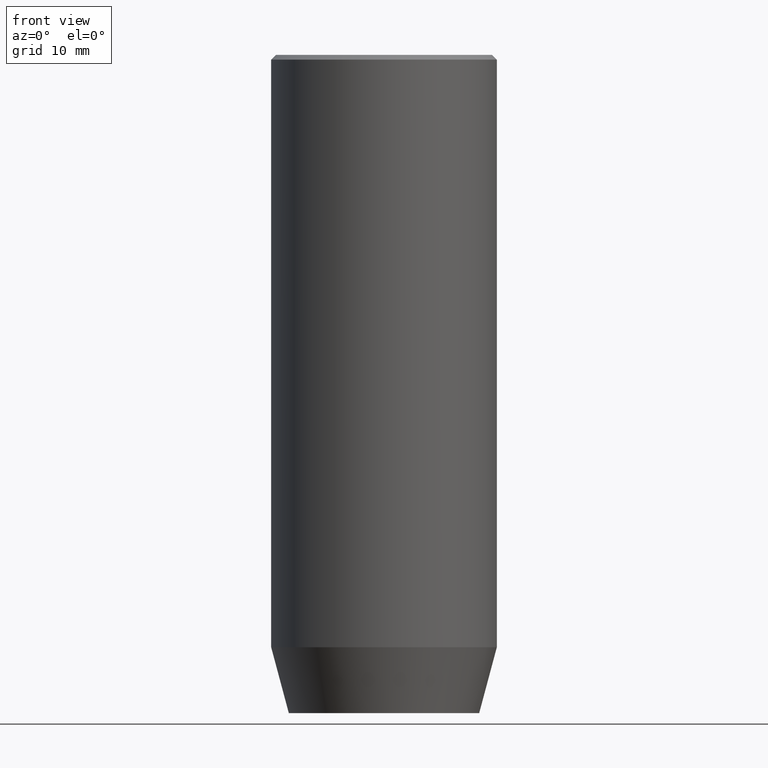
[diagram: clean part render]
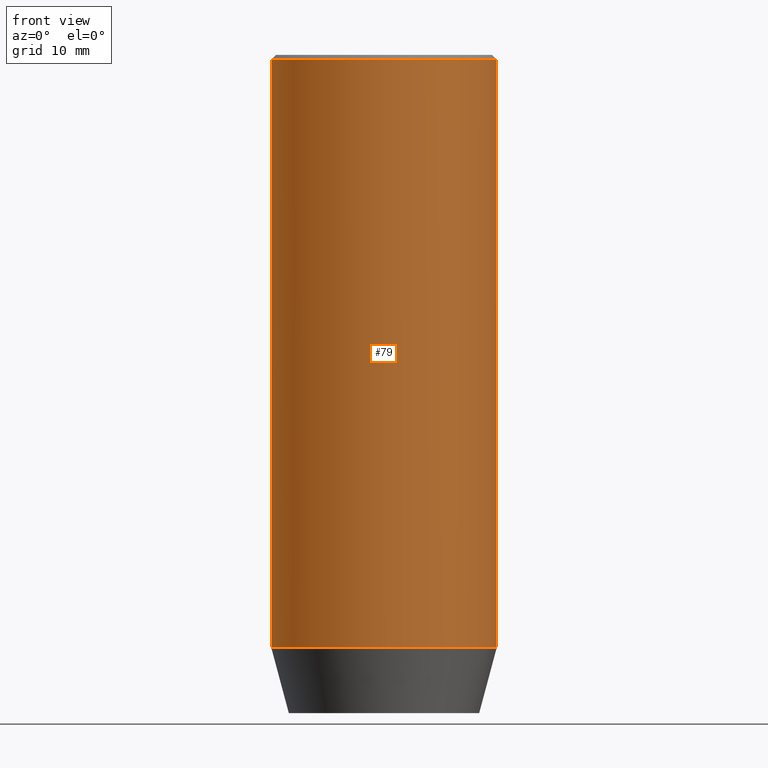
[diagram: same view with one face highlighted and labeled with its STEP entity id]
A machine part, front view. The second image highlights one B-rep face of the part: STEP entity #79.
In plain terms, the highlighted cylindrical surface (partial cylindrical patch) has radius 12 mm, axis along (-0, -0, 1).
Its self-contained STEP definition (entity closure, byte-faithful):
#5 = EDGE_CURVE ( 'NONE', #216, #19, #452, .T. ) ;
#12 = AXIS2_PLACEMENT_3D ( 'NONE', #538, #484, #308 ) ;
#19 = VERTEX_POINT ( 'NONE', #209 ) ;
#20 = AXIS2_PLACEMENT_3D ( 'NONE', #435, #495, #437 ) ;
#31 = LINE ( 'NONE', #160, #547 ) ;
#47 = EDGE_CURVE ( 'NONE', #382, #216, #31, .T. ) ;
#53 = ORIENTED_EDGE ( 'NONE', *, *, #5, .T. ) ;
#56 = ORIENTED_EDGE ( 'NONE', *, *, #47, .T. ) ;
#60 = CARTESIAN_POINT ( 'NONE',  ( -12.00000000000000000, 1.469576158976823947E-15, -63.00000000000000000 ) ) ;
#79 = ADVANCED_FACE ( 'NONE', ( #116 ), #398, .T. ) ;
#116 = FACE_OUTER_BOUND ( 'NONE', #233, .T. ) ;
#148 = CARTESIAN_POINT ( 'NONE',  ( 12.00000000000000000, 0.000000000000000000, -63.00000000000000000 ) ) ;
#160 = CARTESIAN_POINT ( 'NONE',  ( 12.00000000000000000, 0.000000000000000000, 0.000000000000000000 ) ) ;
#171 = EDGE_CURVE ( 'NONE', #348, #382, #472, .T. ) ;
#191 = ORIENTED_EDGE ( 'NONE', *, *, #171, .T. ) ;
#209 = CARTESIAN_POINT ( 'NONE',  ( -12.00000000000000000, 1.469576158976823947E-15, -0.4999999999999917843 ) ) ;
#216 = VERTEX_POINT ( 'NONE', #401 ) ;
#220 = DIRECTION ( 'NONE',  ( -0.000000000000000000, -0.000000000000000000, 1.000000000000000000 ) ) ;
#233 = EDGE_LOOP ( 'NONE', ( #443, #191, #56, #53 ) ) ;
#276 = CARTESIAN_POINT ( 'NONE',  ( -12.00000000000000000, 1.469576158976823947E-15, 0.000000000000000000 ) ) ;
#308 = DIRECTION ( 'NONE',  ( 1.000000000000000000, 0.000000000000000000, 0.000000000000000000 ) ) ;
#319 = EDGE_CURVE ( 'NONE', #348, #19, #564, .T. ) ;
#348 = VERTEX_POINT ( 'NONE', #60 ) ;
#366 = DIRECTION ( 'NONE',  ( -0.000000000000000000, -0.000000000000000000, 1.000000000000000000 ) ) ;
#382 = VERTEX_POINT ( 'NONE', #148 ) ;
#391 = DIRECTION ( 'NONE',  ( -0.000000000000000000, -0.000000000000000000, 1.000000000000000000 ) ) ;
#398 = CYLINDRICAL_SURFACE ( 'NONE', #12, 12.00000000000000000 ) ;
#401 = CARTESIAN_POINT ( 'NONE',  ( 12.00000000000000000, 0.000000000000000000, -0.4999999999999917843 ) ) ;
#435 = CARTESIAN_POINT ( 'NONE',  ( 0.000000000000000000, 0.000000000000000000, -0.4999999999999917843 ) ) ;
#437 = DIRECTION ( 'NONE',  ( 1.000000000000000000, 0.000000000000000000, 0.000000000000000000 ) ) ;
#443 = ORIENTED_EDGE ( 'NONE', *, *, #319, .F. ) ;
#445 = VECTOR ( 'NONE', #366, 1000.000000000000000 ) ;
#448 = DIRECTION ( 'NONE',  ( 1.000000000000000000, 0.000000000000000000, 0.000000000000000000 ) ) ;
#452 = CIRCLE ( 'NONE', #20, 12.00000000000000000 ) ;
#472 = CIRCLE ( 'NONE', #503, 12.00000000000000000 ) ;
#484 = DIRECTION ( 'NONE',  ( -0.000000000000000000, -0.000000000000000000, 1.000000000000000000 ) ) ;
#495 = DIRECTION ( 'NONE',  ( 0.000000000000000000, 0.000000000000000000, -1.000000000000000000 ) ) ;
#503 = AXIS2_PLACEMENT_3D ( 'NONE', #505, #220, #448 ) ;
#505 = CARTESIAN_POINT ( 'NONE',  ( 0.000000000000000000, 0.000000000000000000, -63.00000000000000000 ) ) ;
#538 = CARTESIAN_POINT ( 'NONE',  ( 0.000000000000000000, 0.000000000000000000, 0.000000000000000000 ) ) ;
#547 = VECTOR ( 'NONE', #391, 1000.000000000000000 ) ;
#564 = LINE ( 'NONE', #276, #445 ) ;